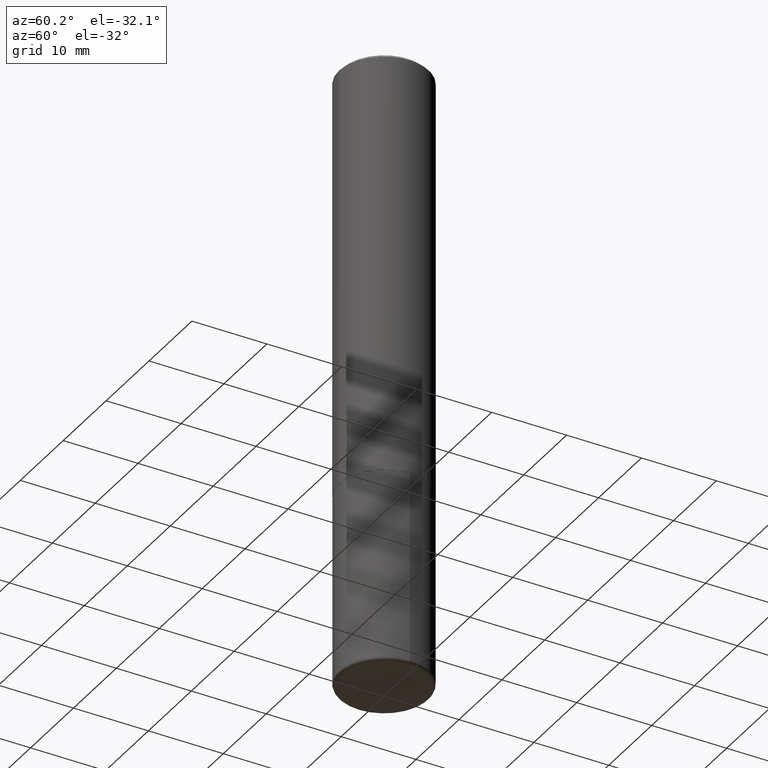
[diagram: clean part render]
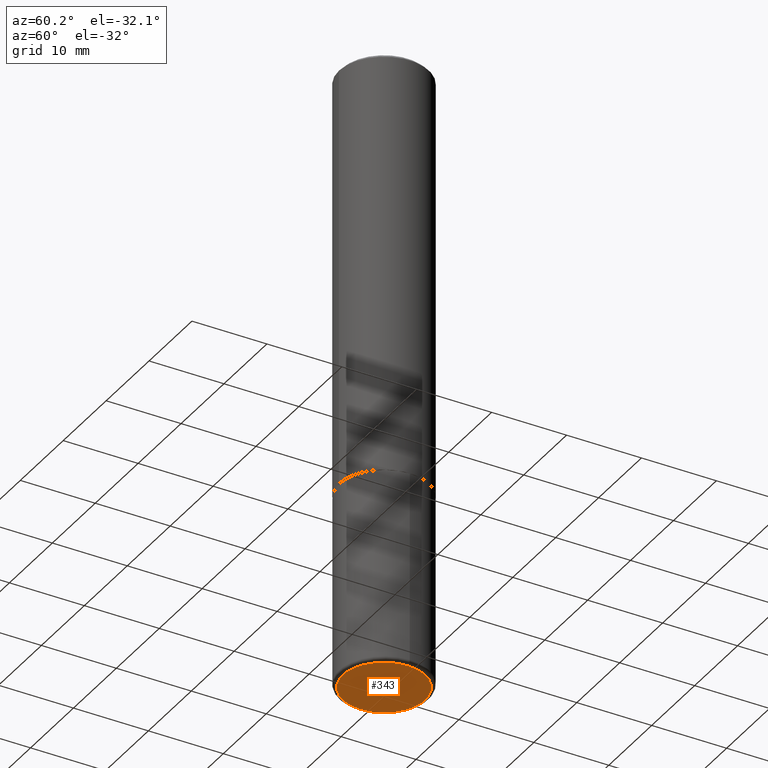
[diagram: same view with one face highlighted and labeled with its STEP entity id]
A machine part, auxiliary view. The second image highlights one B-rep face of the part: STEP entity #343.
In plain terms, the highlighted planar face has unit normal (0, -0, -1).
Its self-contained STEP definition (entity closure, byte-faithful):
#9 = AXIS2_PLACEMENT_3D ( 'NONE', #345, #159, #384 ) ;
#10 = DIRECTION ( 'NONE',  ( 1.000000000000000000, -6.982962677686267499E-15, 0.000000000000000000 ) ) ;
#20 = DIRECTION ( 'NONE',  ( -1.000000000000000000, 6.982962677686265922E-15, -4.876176775795935793E-29 ) ) ;
#32 = CIRCLE ( 'NONE', #9, 0.2164999999999999980 ) ;
#55 = FACE_OUTER_BOUND ( 'NONE', #115, .T. ) ;
#82 = CARTESIAN_POINT ( 'NONE',  ( -0.2164999999999999980, -9.766408997357155292E-15, -3.267699999999999605 ) ) ;
#114 = AXIS2_PLACEMENT_3D ( 'NONE', #187, #254, #20 ) ;
#115 = EDGE_LOOP ( 'NONE', ( #138, #341 ) ) ;
#125 = EDGE_CURVE ( 'NONE', #175, #279, #229, .T. ) ;
#138 = ORIENTED_EDGE ( 'NONE', *, *, #125, .F. ) ;
#159 = DIRECTION ( 'NONE',  ( -2.445468806185136597E-29, 3.491481338843145583E-15, 1.000000000000000000 ) ) ;
#175 = VERTEX_POINT ( 'NONE', #342 ) ;
#187 = CARTESIAN_POINT ( 'NONE',  ( 1.374957371002732032E-28, -3.162591918377267000E-15, -3.267699999999999605 ) ) ;
#229 = CIRCLE ( 'NONE', #313, 0.2164999999999999980 ) ;
#245 = CARTESIAN_POINT ( 'NONE',  ( 7.991058417971169471E-29, -1.140911357093774486E-14, -3.267699999999999605 ) ) ;
#254 = DIRECTION ( 'NONE',  ( 2.438088387897960049E-29, -3.491481338843145188E-15, -1.000000000000000000 ) ) ;
#279 = VERTEX_POINT ( 'NONE', #82 ) ;
#292 = EDGE_CURVE ( 'NONE', #279, #175, #32, .T. ) ;
#313 = AXIS2_PLACEMENT_3D ( 'NONE', #245, #397, #10 ) ;
#317 = PLANE ( 'NONE',  #114 ) ;
#341 = ORIENTED_EDGE ( 'NONE', *, *, #292, .F. ) ;
#342 = CARTESIAN_POINT ( 'NONE',  ( 0.2164999999999999980, -1.292092499065682217E-14, -3.267699999999999605 ) ) ;
#343 = ADVANCED_FACE ( 'NONE', ( #55 ), #317, .T. ) ;
#345 = CARTESIAN_POINT ( 'NONE',  ( 7.991058417971169471E-29, -1.140911357093774486E-14, -3.267699999999999605 ) ) ;
#384 = DIRECTION ( 'NONE',  ( 1.000000000000000000, -6.982962677686267499E-15, 0.000000000000000000 ) ) ;
#397 = DIRECTION ( 'NONE',  ( -2.445468806185136597E-29, 3.491481338843145583E-15, 1.000000000000000000 ) ) ;